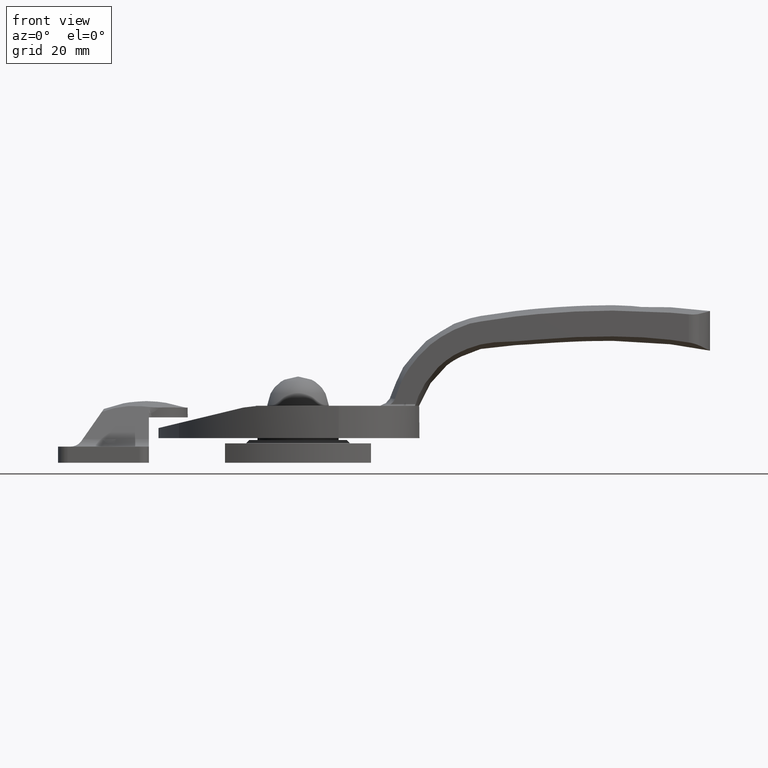
[diagram: clean part render]
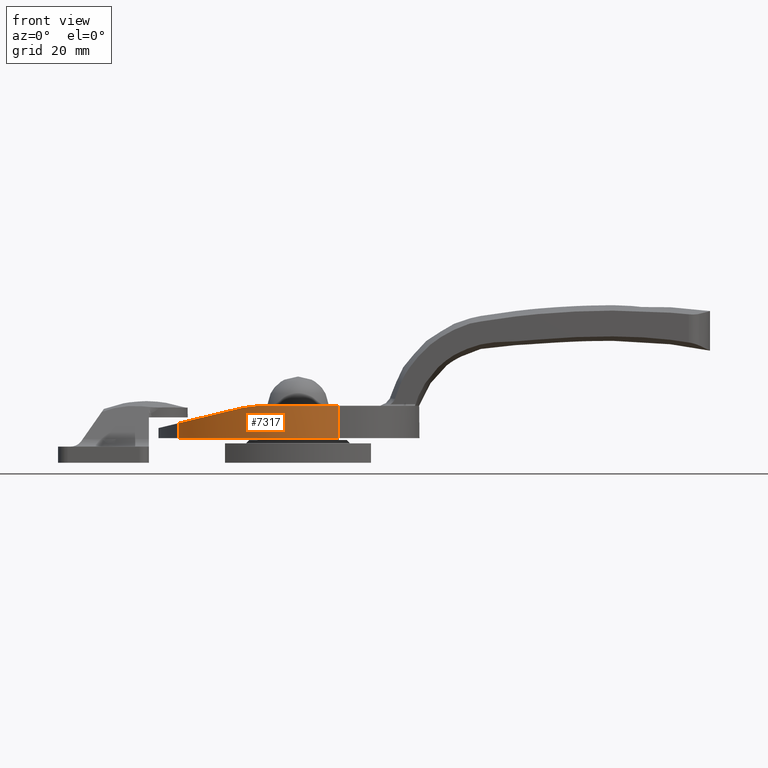
[diagram: same view with one face highlighted and labeled with its STEP entity id]
A machine part, front view. The second image highlights one B-rep face of the part: STEP entity #7317.
In plain terms, the highlighted face is a freeform B-spline surface patch.
Its self-contained STEP definition (entity closure, byte-faithful):
#6660=CARTESIAN_POINT('',(36.713930954665287,16.205081718023202,7.600000000000000));
#6661=VERTEX_POINT('',#6660);
#6675=CARTESIAN_POINT('',(36.713930954665287,16.205081718023202,12.238016666115319));
#6676=VERTEX_POINT('',#6675);
#6677=CARTESIAN_POINT('',(36.713930954665287,16.205081718023202,12.238016666115319));
#6678=CARTESIAN_POINT('',(36.713930954665287,16.205081718023202,7.600000000000000));
#6679=QUASI_UNIFORM_CURVE('',1,(#6677,#6678),.UNSPECIFIED.,.F.,.U.);
#6680=EDGE_CURVE('',#6676,#6661,#6679,.T.);
#6713=CARTESIAN_POINT('',(12.120377770421360,39.237350440775401,17.600000000000001));
#6714=VERTEX_POINT('',#6713);
#6715=CARTESIAN_POINT('',(16.813188432499398,36.736250694111803,17.041644171465752));
#6716=VERTEX_POINT('',#6715);
#6717=CARTESIAN_POINT('',(12.120377770421360,39.237350440775401,17.600000000000001));
#6718=CARTESIAN_POINT('',(12.931533522344809,38.854176937172348,17.600000000000001));
#6719=CARTESIAN_POINT('',(13.727693018945800,38.453836235189037,17.550859810274449));
#6720=CARTESIAN_POINT('',(15.291556764655491,37.619831698220800,17.362689423858580));
#6721=CARTESIAN_POINT('',(16.059255845887769,37.186165160524872,17.223627899268450));
#6722=CARTESIAN_POINT('',(16.813188432499398,36.736250694111803,17.041644171465752));
#6723=B_SPLINE_CURVE_WITH_KNOTS('',3,(#6717,#6718,#6719,#6720,#6721,#6722),.UNSPECIFIED.,.F.,.U.,(4,2,4),(0.0,0.500000000000000,1.0),.UNSPECIFIED.);
#6724=EDGE_CURVE('',#6714,#6716,#6723,.T.);
#6759=CARTESIAN_POINT('',(16.813188432499391,36.736250694111810,17.041644171465741));
#6760=CARTESIAN_POINT('',(29.526963748634323,29.149217663529395,13.972801853777982));
#6761=CARTESIAN_POINT('',(36.713930954665308,16.205081718023209,12.238016666115310));
#6769=(BOUNDED_CURVE()B_SPLINE_CURVE(2,(#6759,#6760,#6761),.UNSPECIFIED.,.F.,.U.)CURVE()GEOMETRIC_REPRESENTATION_ITEM()QUASI_UNIFORM_CURVE()RATIONAL_B_SPLINE_CURVE((1.0,0.965625372129879,1.0))REPRESENTATION_ITEM(''));
#6770=EDGE_CURVE('',#6716,#6676,#6769,.T.);
#7192=CARTESIAN_POINT('',(-12.543390818056860,44.494210053784897,7.600000000000000));
#7193=VERTEX_POINT('',#7192);
#7248=CARTESIAN_POINT('',(-12.543390818056860,44.494210053784897,17.600000000000001));
#7249=VERTEX_POINT('',#7248);
#7263=CARTESIAN_POINT('',(-12.543390818056860,44.494210053784897,7.600000000000000));
#7264=CARTESIAN_POINT('',(-12.543390818056860,44.494210053784897,17.600000000000001));
#7265=QUASI_UNIFORM_CURVE('',1,(#7263,#7264),.UNSPECIFIED.,.F.,.U.);
#7266=EDGE_CURVE('',#7193,#7249,#7265,.T.);
#7271=CARTESIAN_POINT('',(-14.455836283764020,44.420140706764123,7.349999999999999));
#7272=CARTESIAN_POINT('',(-14.455836283764020,44.420140706764123,17.856249999999999));
#7273=CARTESIAN_POINT('',(21.890577897504418,46.461703080211208,7.349999999999999));
#7274=CARTESIAN_POINT('',(21.890577897504418,46.461703080211208,17.856250000000003));
#7275=CARTESIAN_POINT('',(37.971521400473932,13.802354390819239,7.349999999999999));
#7276=CARTESIAN_POINT('',(37.971521400473932,13.802354390819239,17.856249999999999));
#7284=(BOUNDED_SURFACE()B_SPLINE_SURFACE(1,2,((#7271,#7273,#7275),(#7272,#7274,#7276)),.UNSPECIFIED.,.F.,.F.,.U.)B_SPLINE_SURFACE_WITH_KNOTS((2,2),(3,3),(0.0,10.506250000000010),(0.0,66.212484609200089),.UNSPECIFIED.)GEOMETRIC_REPRESENTATION_ITEM()RATIONAL_B_SPLINE_SURFACE(((1.0,0.833885822067168,1.0),(1.0,0.833885822067168,1.0)))REPRESENTATION_ITEM('')SURFACE());
#7285=ORIENTED_EDGE('',*,*,#6770,.T.);
#7286=ORIENTED_EDGE('',*,*,#6680,.T.);
#7287=CARTESIAN_POINT('',(36.713930954665287,16.205081718023180,7.600000000000000));
#7288=CARTESIAN_POINT('',(20.614568290816674,45.200947843861314,7.599999999999999));
#7289=CARTESIAN_POINT('',(-12.543390818056860,44.494210053784911,7.600000000000000));
#7297=(BOUNDED_CURVE()B_SPLINE_CURVE(2,(#7287,#7288,#7289),.UNSPECIFIED.,.F.,.U.)CURVE()GEOMETRIC_REPRESENTATION_ITEM()QUASI_UNIFORM_CURVE()RATIONAL_B_SPLINE_CURVE((1.0,0.856354056585161,1.0))REPRESENTATION_ITEM(''));
#7298=EDGE_CURVE('',#6661,#7193,#7297,.T.);
#7299=ORIENTED_EDGE('',*,*,#7298,.T.);
#7300=ORIENTED_EDGE('',*,*,#7266,.T.);
#7301=CARTESIAN_POINT('',(12.120377770421380,39.237350440775408,17.600000000000001));
#7302=CARTESIAN_POINT('',(0.407554992870549,44.770250047433514,17.600000000000005));
#7303=CARTESIAN_POINT('',(-12.543390818056860,44.494210053784911,17.600000000000001));
#7311=(BOUNDED_CURVE()B_SPLINE_CURVE(2,(#7301,#7302,#7303),.UNSPECIFIED.,.F.,.U.)CURVE()GEOMETRIC_REPRESENTATION_ITEM()QUASI_UNIFORM_CURVE()RATIONAL_B_SPLINE_CURVE((1.0,0.973366992107408,1.0))REPRESENTATION_ITEM(''));
#7312=EDGE_CURVE('',#6714,#7249,#7311,.T.);
#7313=ORIENTED_EDGE('',*,*,#7312,.F.);
#7314=ORIENTED_EDGE('',*,*,#6724,.T.);
#7315=EDGE_LOOP('',(#7285,#7286,#7299,#7300,#7313,#7314));
#7316=FACE_OUTER_BOUND('',#7315,.T.);
#7317=ADVANCED_FACE('',(#7316),#7284,.T.);